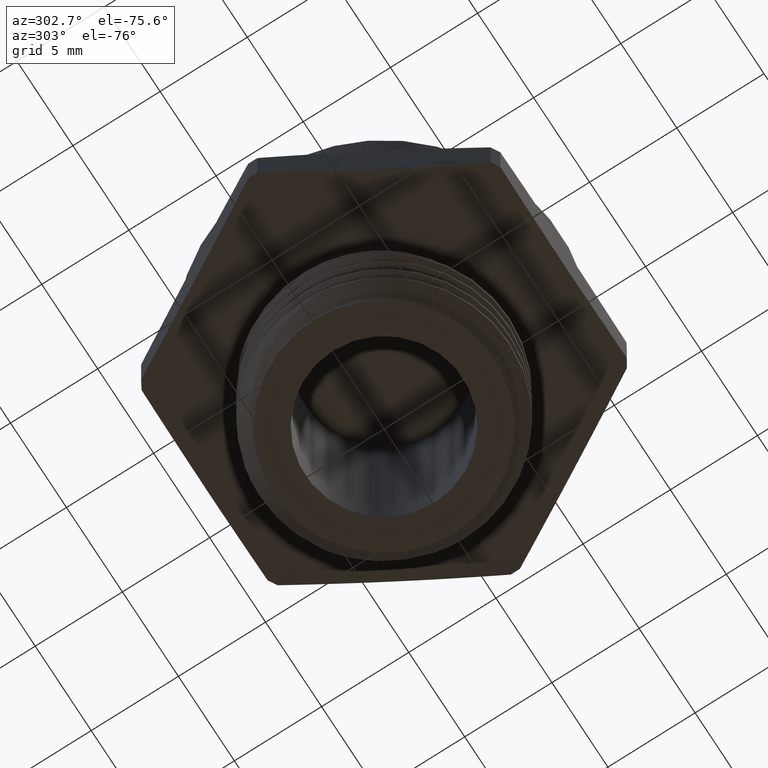
[diagram: clean part render]
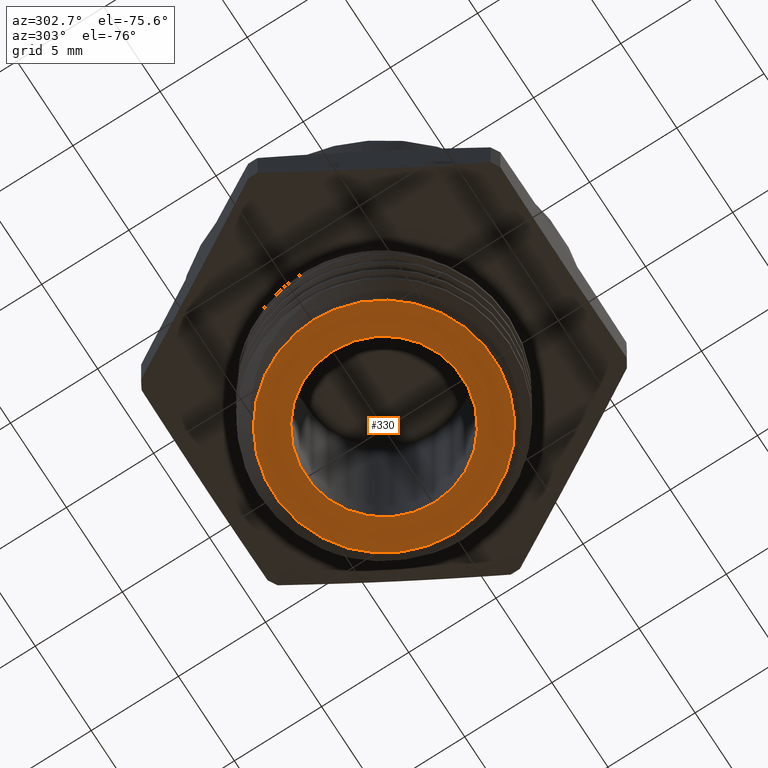
[diagram: same view with one face highlighted and labeled with its STEP entity id]
A machine part, auxiliary view. The second image highlights one B-rep face of the part: STEP entity #330.
In plain terms, the highlighted planar face has unit normal (0, 0, -1).
Its self-contained STEP definition (entity closure, byte-faithful):
#52 = FACE_BOUND ( 'NONE', #278, .T. ) ;
#55 = FACE_OUTER_BOUND ( 'NONE', #277, .T. ) ;
#149 = AXIS2_PLACEMENT_3D ( 'NONE', #781, #782, #783 ) ;
#152 = AXIS2_PLACEMENT_3D ( 'NONE', #845, #846, #847 ) ;
#168 = AXIS2_PLACEMENT_3D ( 'NONE', #1005, #1006, #1007 ) ;
#194 = AXIS2_PLACEMENT_3D ( 'NONE', #1593, #1594, #1595 ) ;
#241 = VERTEX_POINT ( 'NONE', #2732 ) ;
#242 = VERTEX_POINT ( 'NONE', #2727 ) ;
#263 = VERTEX_POINT ( 'NONE', #2706 ) ;
#277 = EDGE_LOOP ( 'NONE', ( #2784, #2785, #2786 ) ) ;
#278 = EDGE_LOOP ( 'NONE', ( #2787, #2788 ) ) ;
#330 = ADVANCED_FACE ( 'NONE', ( #55, #52 ), #2622, .T. ) ;
#391 = CIRCLE ( 'NONE', #149, 0.2482000000000000300 ) ;
#401 = CIRCLE ( 'NONE', #152, 0.1774999999999999900 ) ;
#424 = CIRCLE ( 'NONE', #168, 0.2482000000000000300 ) ;
#750 = CARTESIAN_POINT ( 'NONE',  ( -0.08478471766085116100, 0.2332697829792143600, -0.3900000000000000700 ) ) ;
#781 = CARTESIAN_POINT ( 'NONE',  ( 0.0000000000000000000, 0.0000000000000000000, -0.3900000000000000700 ) ) ;
#782 = DIRECTION ( 'NONE',  ( -0.0000000000000000000, -0.0000000000000000000, 1.000000000000000000 ) ) ;
#783 = DIRECTION ( 'NONE',  ( 1.000000000000000000, 0.0000000000000000000, 0.0000000000000000000 ) ) ;
#845 = CARTESIAN_POINT ( 'NONE',  ( 0.0000000000000000000, 0.0000000000000000000, -0.3900000000000000100 ) ) ;
#846 = DIRECTION ( 'NONE',  ( -0.0000000000000000000, -0.0000000000000000000, 1.000000000000000000 ) ) ;
#847 = DIRECTION ( 'NONE',  ( -1.000000000000000000, 0.0000000000000000000, 0.0000000000000000000 ) ) ;
#1005 = CARTESIAN_POINT ( 'NONE',  ( 0.0000000000000000000, 0.0000000000000000000, -0.3900000000000000700 ) ) ;
#1006 = DIRECTION ( 'NONE',  ( -0.0000000000000000000, -0.0000000000000000000, 1.000000000000000000 ) ) ;
#1007 = DIRECTION ( 'NONE',  ( 1.000000000000000000, 0.0000000000000000000, 0.0000000000000000000 ) ) ;
#1114 = CARTESIAN_POINT ( 'NONE',  ( -0.2443275333129481300, -0.04367260543189813200, -0.3900000000000000700 ) ) ;
#1522 = CARTESIAN_POINT ( 'NONE',  ( -0.08478471766085116100, 0.2332697829792143600, -0.3900000000000000700 ) ) ;
#1531 = CARTESIAN_POINT ( 'NONE',  ( -0.09849541897262929800, 0.2282864631303896100, -0.3899999999999999600 ) ) ;
#1575 = CARTESIAN_POINT ( 'NONE',  ( -0.1117823901991614500, 0.2220744234794301300, -0.3900000000000000700 ) ) ;
#1576 = CARTESIAN_POINT ( 'NONE',  ( -0.1368156813599840100, 0.2075905143699060000, -0.3900000000000000700 ) ) ;
#1577 = CARTESIAN_POINT ( 'NONE',  ( -0.1485898872401438800, 0.1993291142991935600, -0.3900000000000003500 ) ) ;
#1578 = CARTESIAN_POINT ( 'NONE',  ( -0.1706672652832676400, 0.1807864346627545400, -0.3900000000000004000 ) ) ;
#1579 = CARTESIAN_POINT ( 'NONE',  ( -0.1810472171057983000, 0.1703929645196856100, -0.3900000000000001200 ) ) ;
#1580 = CARTESIAN_POINT ( 'NONE',  ( -0.1995896740451290600, 0.1482424338511750300, -0.3900000000000000700 ) ) ;
#1581 = CARTESIAN_POINT ( 'NONE',  ( -0.2078265440900105300, 0.1364534751584811900, -0.3900000000000000700 ) ) ;
#1582 = CARTESIAN_POINT ( 'NONE',  ( -0.2222380175508511500, 0.1114526216214355400, -0.3899999999999999600 ) ) ;
#1583 = CARTESIAN_POINT ( 'NONE',  ( -0.2284341104445560300, 0.09812889838082292100, -0.3899999999999998500 ) ) ;
#1584 = CARTESIAN_POINT ( 'NONE',  ( -0.2382659518194299400, 0.07099830783624755400, -0.3899999999999999600 ) ) ;
#1585 = CARTESIAN_POINT ( 'NONE',  ( -0.2419733637587145600, 0.05710296121590734100, -0.3900000000000002400 ) ) ;
#1586 = CARTESIAN_POINT ( 'NONE',  ( -0.2469636178931723900, 0.02865010271269139200, -0.3900000000000002400 ) ) ;
#1587 = CARTESIAN_POINT ( 'NONE',  ( -0.2482252163818882700, 0.01402153766750824500, -0.3899999999999996800 ) ) ;
#1588 = CARTESIAN_POINT ( 'NONE',  ( -0.2481740054588137400, -0.01490048928476202100, -0.3899999999999997400 ) ) ;
#1589 = CARTESIAN_POINT ( 'NONE',  ( -0.2468944412121906700, -0.02931197205403790100, -0.3900000000000001200 ) ) ;
#1590 = CARTESIAN_POINT ( 'NONE',  ( -0.2443275333129481300, -0.04367260543189813200, -0.3900000000000000700 ) ) ;
#1593 = CARTESIAN_POINT ( 'NONE',  ( 0.0000000000000000000, 0.0000000000000000000, -0.3900000000000000100 ) ) ;
#1594 = DIRECTION ( 'NONE',  ( -0.0000000000000000000, -0.0000000000000000000, 1.000000000000000000 ) ) ;
#1595 = DIRECTION ( 'NONE',  ( -1.000000000000000000, 0.0000000000000000000, 0.0000000000000000000 ) ) ;
#1955 = VERTEX_POINT ( 'NONE', #750 ) ;
#2060 = B_SPLINE_CURVE_WITH_KNOTS ( 'NONE', 3,
 ( #1522, #1531, #1575, #1576, #1577, #1578, #1579, #1580, #1581, #1582, #1583, #1584, #1585, #1586, #1587, #1588, #1589, #1590 ),
 .UNSPECIFIED., .F., .F.,
 ( 4, 2, 2, 2, 2, 2, 2, 2, 4 ),
 ( 0.0000000000000000000, 0.001109876748088054500, 0.002219753496176109000, 0.003329630244264163700, 0.004439506992352217100, 0.005549383740440271300, 0.006659260488528323900, 0.007769137236616378100, 0.008879013984704430700 ),
 .UNSPECIFIED. ) ;
#2124 = EDGE_CURVE ( 'NONE', #242, #1955, #391, .T. ) ;
#2133 = EDGE_CURVE ( 'NONE', #241, #263, #401, .T. ) ;
#2159 = EDGE_CURVE ( 'NONE', #2476, #242, #424, .T. ) ;
#2240 = EDGE_CURVE ( 'NONE', #1955, #2476, #2060, .T. ) ;
#2241 = EDGE_CURVE ( 'NONE', #263, #241, #2419, .T. ) ;
#2286 = AXIS2_PLACEMENT_3D ( 'NONE', #2624, #2626, #2620 ) ;
#2419 = CIRCLE ( 'NONE', #194, 0.1774999999999999900 ) ;
#2476 = VERTEX_POINT ( 'NONE', #1114 ) ;
#2620 = DIRECTION ( 'NONE',  ( -1.000000000000000000, 0.0000000000000000000, -0.0000000000000000000 ) ) ;
#2622 = PLANE ( 'NONE',  #2286 ) ;
#2624 = CARTESIAN_POINT ( 'NONE',  ( 0.0000000000000000000, 0.0000000000000000000, -0.3900000000000000100 ) ) ;
#2626 = DIRECTION ( 'NONE',  ( 0.0000000000000000000, 0.0000000000000000000, -1.000000000000000000 ) ) ;
#2706 = CARTESIAN_POINT ( 'NONE',  ( 0.1774999999999999900, 0.0000000000000000000, -0.3900000000000000100 ) ) ;
#2727 = CARTESIAN_POINT ( 'NONE',  ( 0.2482000000000000300, 0.0000000000000000000, -0.3900000000000000700 ) ) ;
#2732 = CARTESIAN_POINT ( 'NONE',  ( -0.1774999999999999900, 2.173748068486551800E-017, -0.3900000000000000100 ) ) ;
#2784 = ORIENTED_EDGE ( 'NONE', *, *, #2159, .F. ) ;
#2785 = ORIENTED_EDGE ( 'NONE', *, *, #2240, .F. ) ;
#2786 = ORIENTED_EDGE ( 'NONE', *, *, #2124, .F. ) ;
#2787 = ORIENTED_EDGE ( 'NONE', *, *, #2241, .T. ) ;
#2788 = ORIENTED_EDGE ( 'NONE', *, *, #2133, .T. ) ;